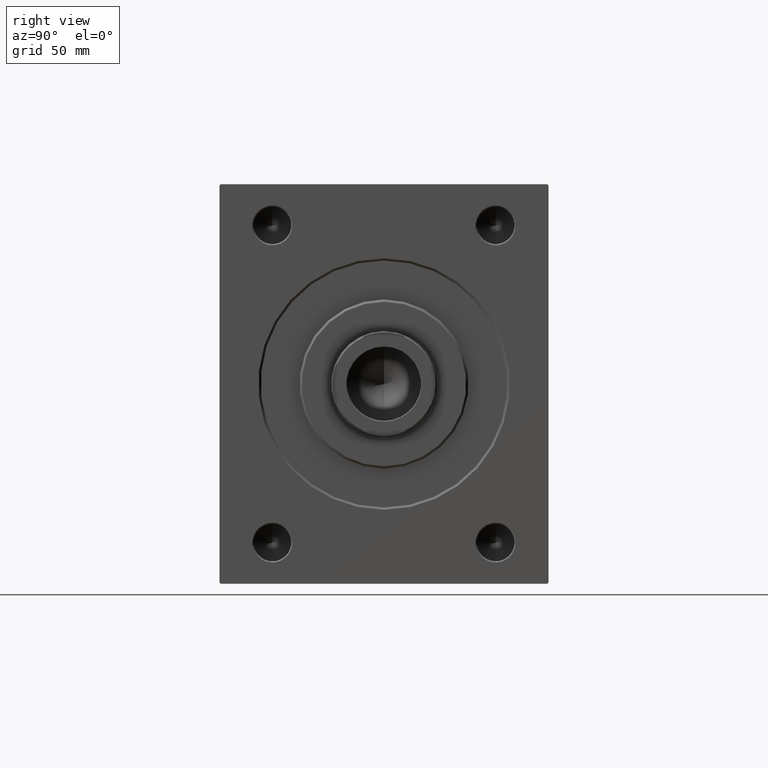
[diagram: clean part render]
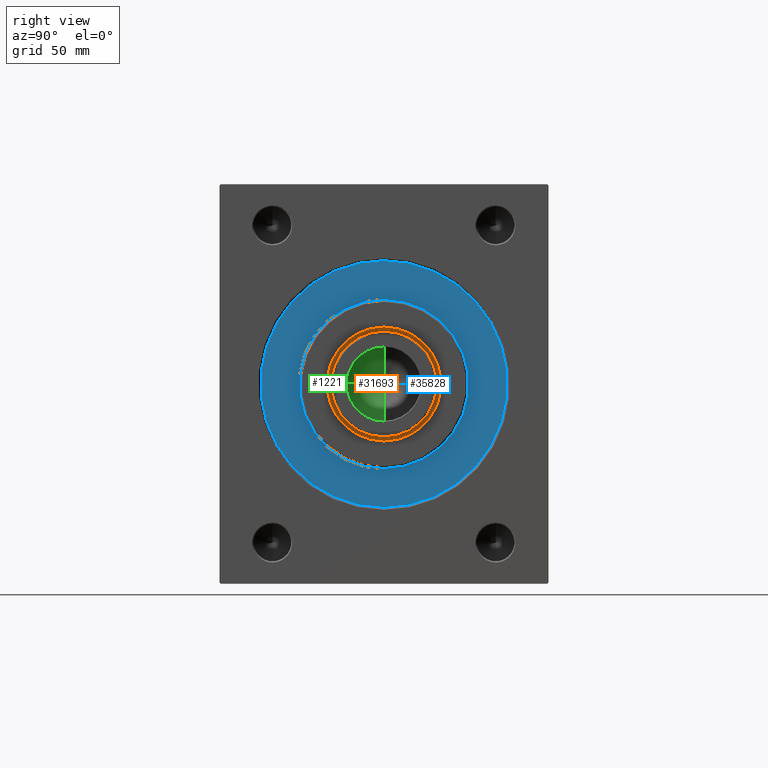
[diagram: same view with three faces highlighted in distinct colors, each labeled with its STEP entity id]
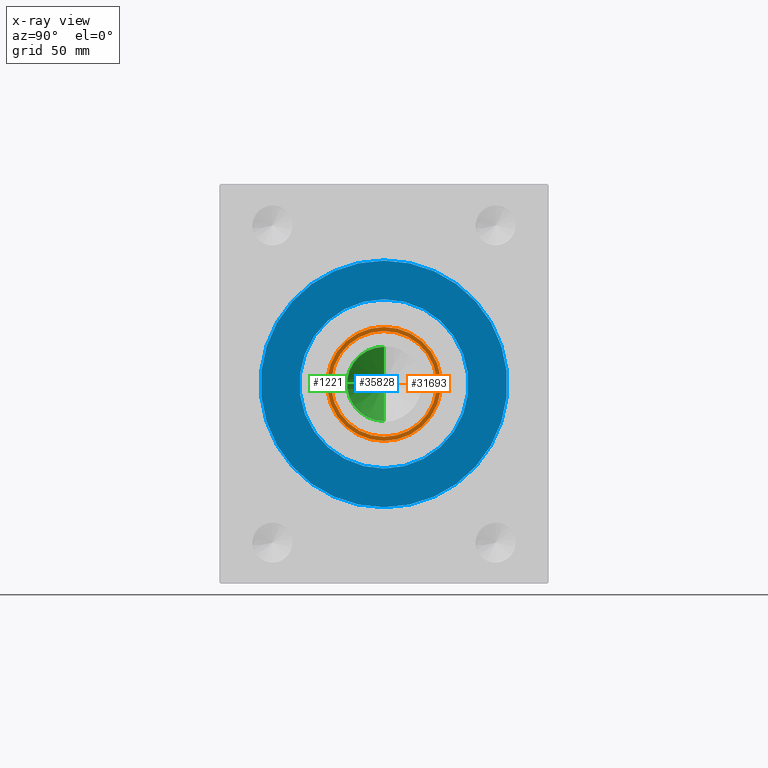
[diagram: x-ray of the same camera — body ghosted, the three highlighted faces saturated]
A machine part, right view with three faces highlighted in distinct colors.
The next image is the same camera in x-ray (body ghosted, the three faces saturated) — at least one of them is partly hidden behind the body in this view.
Their STEP definitions:

[orange] entity #31693 — the highlighted planar face has unit normal (1, 0, 0).
#445 = EDGE_CURVE ( 'NONE', #20665, #41514, #38806, .T. ) ;
#1741 = DIRECTION ( 'NONE',  ( 1.000000000000000000, 0.000000000000000000, 0.000000000000000000 ) ) ;
#2315 = CARTESIAN_POINT ( 'NONE',  ( 1.500000000000000000, 0.000000000000000000, 0.000000000000000000 ) ) ;
#2439 = AXIS2_PLACEMENT_3D ( 'NONE', #2315, #43695, #12727 ) ;
#2653 = DIRECTION ( 'NONE',  ( 1.000000000000000000, 0.000000000000000000, 0.000000000000000000 ) ) ;
#2902 = CARTESIAN_POINT ( 'NONE',  ( 1.500000000000001332, 0.000000000000000000, 0.000000000000000000 ) ) ;
#3043 = EDGE_LOOP ( 'NONE', ( #9195, #7133 ) ) ;
#6518 = DIRECTION ( 'NONE',  ( 0.000000000000000000, 0.000000000000000000, -1.000000000000000000 ) ) ;
#6585 = PLANE ( 'NONE',  #2439 ) ;
#6740 = DIRECTION ( 'NONE',  ( 0.000000000000000000, 0.000000000000000000, -1.000000000000000000 ) ) ;
#7015 = AXIS2_PLACEMENT_3D ( 'NONE', #43807, #2653, #26641 ) ;
#7133 = ORIENTED_EDGE ( 'NONE', *, *, #13621, .F. ) ;
#7215 = AXIS2_PLACEMENT_3D ( 'NONE', #17632, #37950, #6518 ) ;
#9195 = ORIENTED_EDGE ( 'NONE', *, *, #445, .F. ) ;
#12148 = DIRECTION ( 'NONE',  ( 0.000000000000000000, 0.000000000000000000, -1.000000000000000000 ) ) ;
#12727 = DIRECTION ( 'NONE',  ( 0.000000000000000000, 0.000000000000000000, -1.000000000000000000 ) ) ;
#12801 = EDGE_CURVE ( 'NONE', #17255, #37805, #24438, .T. ) ;
#12984 = AXIS2_PLACEMENT_3D ( 'NONE', #36095, #1741, #12148 ) ;
#13621 = EDGE_CURVE ( 'NONE', #41514, #20665, #28806, .T. ) ;
#17255 = VERTEX_POINT ( 'NONE', #33268 ) ;
#17258 = ORIENTED_EDGE ( 'NONE', *, *, #12801, .T. ) ;
#17632 = CARTESIAN_POINT ( 'NONE',  ( 1.500000000000000000, 0.000000000000000000, 0.000000000000000000 ) ) ;
#17671 = EDGE_CURVE ( 'NONE', #37805, #17255, #18102, .T. ) ;
#18102 = CIRCLE ( 'NONE', #7215, 24.25000000000000000 ) ;
#19524 = FACE_BOUND ( 'NONE', #3043, .T. ) ;
#20665 = VERTEX_POINT ( 'NONE', #42402 ) ;
#24438 = CIRCLE ( 'NONE', #12984, 24.25000000000000000 ) ;
#25869 = CARTESIAN_POINT ( 'NONE',  ( 1.500000000000001332, 2.755455298081545172E-15, 22.50000000000000355 ) ) ;
#26641 = DIRECTION ( 'NONE',  ( 0.000000000000000000, 0.000000000000000000, -1.000000000000000000 ) ) ;
#27330 = DIRECTION ( 'NONE',  ( 1.000000000000000000, 0.000000000000000000, 0.000000000000000000 ) ) ;
#28806 = CIRCLE ( 'NONE', #36719, 22.50000000000000355 ) ;
#30526 = EDGE_LOOP ( 'NONE', ( #17258, #41198 ) ) ;
#31693 = ADVANCED_FACE ( 'NONE', ( #19524, #37568 ), #6585, .T. ) ;
#33268 = CARTESIAN_POINT ( 'NONE',  ( 1.500000000000000000, 0.000000000000000000, 24.25000000000000000 ) ) ;
#36095 = CARTESIAN_POINT ( 'NONE',  ( 1.500000000000000000, 0.000000000000000000, 0.000000000000000000 ) ) ;
#36241 = CARTESIAN_POINT ( 'NONE',  ( 1.500000000000000000, 2.969768487932331287E-15, -24.25000000000000000 ) ) ;
#36719 = AXIS2_PLACEMENT_3D ( 'NONE', #2902, #27330, #6740 ) ;
#37568 = FACE_OUTER_BOUND ( 'NONE', #30526, .T. ) ;
#37805 = VERTEX_POINT ( 'NONE', #36241 ) ;
#37950 = DIRECTION ( 'NONE',  ( 1.000000000000000000, 0.000000000000000000, 0.000000000000000000 ) ) ;
#38806 = CIRCLE ( 'NONE', #7015, 22.50000000000000355 ) ;
#41198 = ORIENTED_EDGE ( 'NONE', *, *, #17671, .T. ) ;
#41514 = VERTEX_POINT ( 'NONE', #25869 ) ;
#42402 = CARTESIAN_POINT ( 'NONE',  ( 1.500000000000001332, 0.000000000000000000, -22.50000000000000355 ) ) ;
#43695 = DIRECTION ( 'NONE',  ( 1.000000000000000000, 0.000000000000000000, 0.000000000000000000 ) ) ;
#43807 = CARTESIAN_POINT ( 'NONE',  ( 1.500000000000001332, 0.000000000000000000, 0.000000000000000000 ) ) ;

[blue] entity #35828 — the highlighted planar face has unit normal (-1, 0, 0).
#31 = EDGE_CURVE ( 'NONE', #42376, #20025, #12088, .T. ) ;
#489 = ORIENTED_EDGE ( 'NONE', *, *, #31, .F. ) ;
#1208 = CARTESIAN_POINT ( 'NONE',  ( 0.000000000000000000, 0.000000000000000000, 0.000000000000000000 ) ) ;
#1393 = FACE_OUTER_BOUND ( 'NONE', #4810, .T. ) ;
#1488 = CARTESIAN_POINT ( 'NONE',  ( 0.000000000000000000, 0.000000000000000000, 0.000000000000000000 ) ) ;
#1837 = CARTESIAN_POINT ( 'NONE',  ( 0.000000000000000000, 0.000000000000000000, -52.50000000000000000 ) ) ;
#2095 = ORIENTED_EDGE ( 'NONE', *, *, #28699, .F. ) ;
#2186 = CARTESIAN_POINT ( 'NONE',  ( 0.000000000000000000, 0.000000000000000000, 0.000000000000000000 ) ) ;
#2500 = CIRCLE ( 'NONE', #40087, 52.50000000000000000 ) ;
#2556 = CARTESIAN_POINT ( 'NONE',  ( 0.000000000000000000, 0.000000000000000000, 0.000000000000000000 ) ) ;
#2923 = DIRECTION ( 'NONE',  ( -1.000000000000000000, 0.000000000000000000, 0.000000000000000000 ) ) ;
#3085 = CIRCLE ( 'NONE', #8874, 36.00000000000000000 ) ;
#4810 = EDGE_LOOP ( 'NONE', ( #489, #17778 ) ) ;
#6161 = DIRECTION ( 'NONE',  ( 1.000000000000000000, -0.000000000000000000, 0.000000000000000000 ) ) ;
#8671 = EDGE_CURVE ( 'NONE', #37355, #13662, #30209, .T. ) ;
#8874 = AXIS2_PLACEMENT_3D ( 'NONE', #2186, #29774, #43564 ) ;
#9242 = CARTESIAN_POINT ( 'NONE',  ( 0.000000000000000000, 0.000000000000000000, 36.00000000000000000 ) ) ;
#12088 = CIRCLE ( 'NONE', #22929, 52.50000000000000000 ) ;
#13662 = VERTEX_POINT ( 'NONE', #9242 ) ;
#17778 = ORIENTED_EDGE ( 'NONE', *, *, #34128, .F. ) ;
#18695 = DIRECTION ( 'NONE',  ( 0.000000000000000000, 0.000000000000000000, 1.000000000000000000 ) ) ;
#20025 = VERTEX_POINT ( 'NONE', #39237 ) ;
#22030 = EDGE_LOOP ( 'NONE', ( #2095, #42467 ) ) ;
#22929 = AXIS2_PLACEMENT_3D ( 'NONE', #1208, #35336, #24738 ) ;
#24738 = DIRECTION ( 'NONE',  ( 0.000000000000000000, 0.000000000000000000, 1.000000000000000000 ) ) ;
#26256 = CARTESIAN_POINT ( 'NONE',  ( 0.000000000000000000, 0.000000000000000000, 0.000000000000000000 ) ) ;
#26672 = CARTESIAN_POINT ( 'NONE',  ( 0.000000000000000000, 4.408728476930470856E-15, -36.00000000000000000 ) ) ;
#28699 = EDGE_CURVE ( 'NONE', #13662, #37355, #3085, .T. ) ;
#29774 = DIRECTION ( 'NONE',  ( 1.000000000000000000, -0.000000000000000000, 0.000000000000000000 ) ) ;
#30209 = CIRCLE ( 'NONE', #43224, 36.00000000000000000 ) ;
#33900 = PLANE ( 'NONE',  #42994 ) ;
#34128 = EDGE_CURVE ( 'NONE', #20025, #42376, #2500, .T. ) ;
#35336 = DIRECTION ( 'NONE',  ( -1.000000000000000000, 0.000000000000000000, 0.000000000000000000 ) ) ;
#35622 = DIRECTION ( 'NONE',  ( -1.000000000000000000, 0.000000000000000000, 0.000000000000000000 ) ) ;
#35828 = ADVANCED_FACE ( 'NONE', ( #42772, #1393 ), #33900, .F. ) ;
#37355 = VERTEX_POINT ( 'NONE', #26672 ) ;
#39237 = CARTESIAN_POINT ( 'NONE',  ( 0.000000000000000000, 6.429395695523603956E-15, 52.50000000000000000 ) ) ;
#40087 = AXIS2_PLACEMENT_3D ( 'NONE', #1488, #35622, #18695 ) ;
#40767 = DIRECTION ( 'NONE',  ( 0.000000000000000000, 0.000000000000000000, -1.000000000000000000 ) ) ;
#42376 = VERTEX_POINT ( 'NONE', #1837 ) ;
#42467 = ORIENTED_EDGE ( 'NONE', *, *, #8671, .F. ) ;
#42772 = FACE_BOUND ( 'NONE', #22030, .T. ) ;
#42994 = AXIS2_PLACEMENT_3D ( 'NONE', #26256, #2923, #43423 ) ;
#43224 = AXIS2_PLACEMENT_3D ( 'NONE', #2556, #6161, #40767 ) ;
#43423 = DIRECTION ( 'NONE',  ( 0.000000000000000000, 0.000000000000000000, 1.000000000000000000 ) ) ;
#43564 = DIRECTION ( 'NONE',  ( 0.000000000000000000, 0.000000000000000000, -1.000000000000000000 ) ) ;

[green] entity #1221 — the highlighted conical surface has half-angle 59 deg.
#901 = FACE_OUTER_BOUND ( 'NONE', #28570, .T. ) ;
#1221 = ADVANCED_FACE ( 'NONE', ( #901 ), #43880, .F. ) ;
#1574 = CARTESIAN_POINT ( 'NONE',  ( 0.000000000000000000, 0.000000000000000000, 156.0000000000000000 ) ) ;
#6160 = ORIENTED_EDGE ( 'NONE', *, *, #30308, .T. ) ;
#6463 = LINE ( 'NONE', #23000, #37816 ) ;
#9625 = CARTESIAN_POINT ( 'NONE',  ( 0.000000000000000000, 0.000000000000000000, 156.0000000000000000 ) ) ;
#11533 = CIRCLE ( 'NONE', #42517, 15.74999999999999289 ) ;
#12911 = EDGE_CURVE ( 'NONE', #14416, #26313, #11533, .T. ) ;
#13920 = LINE ( 'NONE', #27477, #32546 ) ;
#14416 = VERTEX_POINT ( 'NONE', #15416 ) ;
#15416 = CARTESIAN_POINT ( 'NONE',  ( -15.74999999999999289, 1.928818708657080556E-15, 156.0000000000000000 ) ) ;
#18336 = DIRECTION ( 'NONE',  ( 1.000000000000000000, 0.000000000000000000, 0.000000000000000000 ) ) ;
#19197 = CARTESIAN_POINT ( 'NONE',  ( -1.041392428426254229E-14, 0.000000000000000000, 146.5364452503159214 ) ) ;
#19621 = DIRECTION ( 'NONE',  ( -0.8571673007021120005, 1.049727191138618326E-16, 0.5150380749100547106 ) ) ;
#20048 = DIRECTION ( 'NONE',  ( -0.000000000000000000, -0.000000000000000000, 1.000000000000000000 ) ) ;
#23000 = CARTESIAN_POINT ( 'NONE',  ( -15.74999999999999289, 1.928818708657080556E-15, 156.0000000000000000 ) ) ;
#23435 = DIRECTION ( 'NONE',  ( 1.000000000000000000, 0.000000000000000000, 0.000000000000000000 ) ) ;
#26313 = VERTEX_POINT ( 'NONE', #30945 ) ;
#26613 = VERTEX_POINT ( 'NONE', #19197 ) ;
#27477 = CARTESIAN_POINT ( 'NONE',  ( 15.74999999999999289, 0.000000000000000000, 156.0000000000000000 ) ) ;
#28489 = DIRECTION ( 'NONE',  ( -0.000000000000000000, -0.000000000000000000, 1.000000000000000000 ) ) ;
#28570 = EDGE_LOOP ( 'NONE', ( #41986, #6160, #37850 ) ) ;
#30308 = EDGE_CURVE ( 'NONE', #26613, #14416, #6463, .T. ) ;
#30638 = DIRECTION ( 'NONE',  ( 0.8571673007021120005, 0.000000000000000000, 0.5150380749100547106 ) ) ;
#30945 = CARTESIAN_POINT ( 'NONE',  ( 15.74999999999999289, 0.000000000000000000, 156.0000000000000000 ) ) ;
#32546 = VECTOR ( 'NONE', #30638, 1000.000000000000000 ) ;
#37816 = VECTOR ( 'NONE', #19621, 1000.000000000000000 ) ;
#37850 = ORIENTED_EDGE ( 'NONE', *, *, #12911, .T. ) ;
#38839 = AXIS2_PLACEMENT_3D ( 'NONE', #1574, #28489, #18336 ) ;
#41986 = ORIENTED_EDGE ( 'NONE', *, *, #43228, .F. ) ;
#42517 = AXIS2_PLACEMENT_3D ( 'NONE', #9625, #20048, #23435 ) ;
#43228 = EDGE_CURVE ( 'NONE', #26613, #26313, #13920, .T. ) ;
#43880 = CONICAL_SURFACE ( 'NONE', #38839, 15.74999999999999289, 1.029744258676653867 ) ;